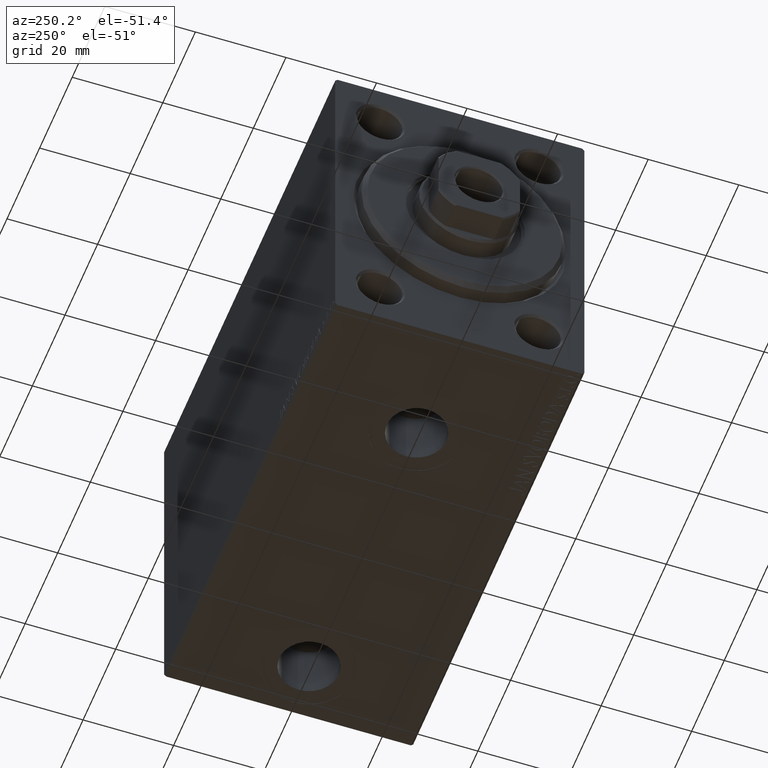
[diagram: clean part render]
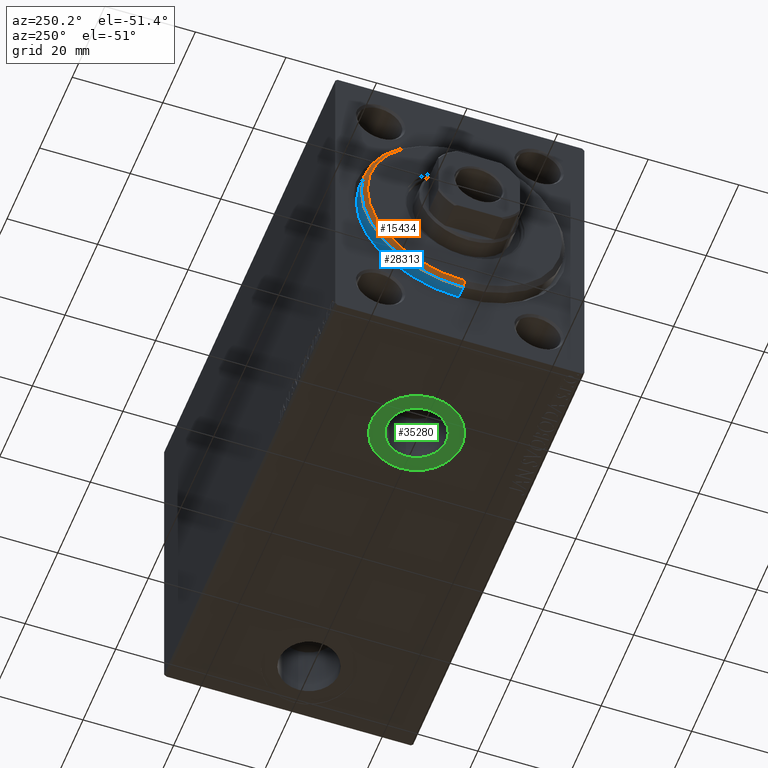
[diagram: same view with three faces highlighted in distinct colors, each labeled with its STEP entity id]
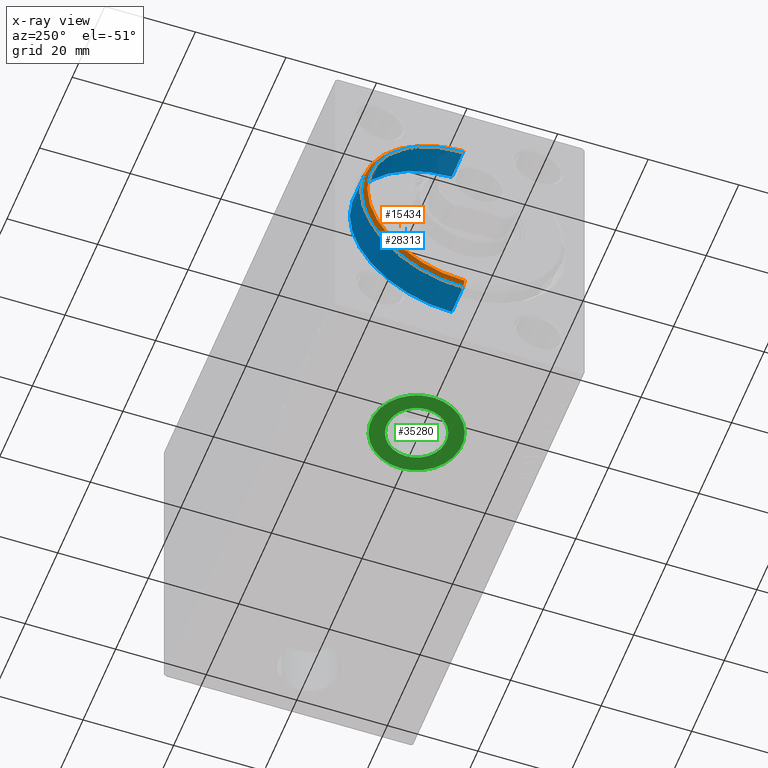
[diagram: x-ray of the same camera — body ghosted, the three highlighted faces saturated]
A machine part, auxiliary view with three faces highlighted in distinct colors.
The next image is the same camera in x-ray (body ghosted, the three faces saturated) — at least one of them is partly hidden behind the body in this view.
Their STEP definitions:

[orange] entity #15434 — the highlighted conical surface has half-angle 45 deg.
#1538 = DIRECTION ( 'NONE',  ( 0.000000000000000000, 0.000000000000000000, 1.000000000000000000 ) ) ;
#2540 = LINE ( 'NONE', #45402, #23604 ) ;
#3064 = ORIENTED_EDGE ( 'NONE', *, *, #23239, .T. ) ;
#3641 = ORIENTED_EDGE ( 'NONE', *, *, #9432, .F. ) ;
#7993 = DIRECTION ( 'NONE',  ( -1.000000000000000000, 0.000000000000000000, 0.000000000000000000 ) ) ;
#8361 = VERTEX_POINT ( 'NONE', #41883 ) ;
#9268 = VECTOR ( 'NONE', #43572, 1000.000000000000000 ) ;
#9432 = EDGE_CURVE ( 'NONE', #8361, #14637, #2540, .T. ) ;
#11248 = CARTESIAN_POINT ( 'NONE',  ( 1.999999999999999112, 0.000000000000000000, 22.50000000000000355 ) ) ;
#11538 = CARTESIAN_POINT ( 'NONE',  ( 3.000000000000000000, 0.000000000000000000, 21.50000000000000355 ) ) ;
#13975 = ORIENTED_EDGE ( 'NONE', *, *, #30765, .F. ) ;
#14024 = VERTEX_POINT ( 'NONE', #31430 ) ;
#14129 = CARTESIAN_POINT ( 'NONE',  ( 1.999999999999999112, 0.000000000000000000, 0.000000000000000000 ) ) ;
#14637 = VERTEX_POINT ( 'NONE', #15121 ) ;
#15121 = CARTESIAN_POINT ( 'NONE',  ( 1.999999999999999112, 2.755455298081545172E-15, -22.50000000000000355 ) ) ;
#15434 = ADVANCED_FACE ( 'NONE', ( #29877 ), #33232, .T. ) ;
#16007 = VERTEX_POINT ( 'NONE', #11248 ) ;
#16636 = CARTESIAN_POINT ( 'NONE',  ( 3.000000000000000000, 0.000000000000000000, 0.000000000000000000 ) ) ;
#19068 = CARTESIAN_POINT ( 'NONE',  ( 3.000000000000000000, 0.000000000000000000, 0.000000000000000000 ) ) ;
#20590 = DIRECTION ( 'NONE',  ( 0.000000000000000000, 0.000000000000000000, -1.000000000000000000 ) ) ;
#23239 = EDGE_CURVE ( 'NONE', #14024, #16007, #43102, .T. ) ;
#23604 = VECTOR ( 'NONE', #30887, 1000.000000000000000 ) ;
#24036 = DIRECTION ( 'NONE',  ( -1.000000000000000000, 0.000000000000000000, 0.000000000000000000 ) ) ;
#25181 = EDGE_CURVE ( 'NONE', #14637, #16007, #26190, .T. ) ;
#26190 = CIRCLE ( 'NONE', #36485, 22.50000000000000355 ) ;
#27075 = AXIS2_PLACEMENT_3D ( 'NONE', #16636, #44979, #38054 ) ;
#28089 = AXIS2_PLACEMENT_3D ( 'NONE', #19068, #7993, #1538 ) ;
#29877 = FACE_OUTER_BOUND ( 'NONE', #34674, .T. ) ;
#30765 = EDGE_CURVE ( 'NONE', #14024, #8361, #44006, .T. ) ;
#30887 = DIRECTION ( 'NONE',  ( -0.7071067811865487940, 8.659560562354919300E-17, -0.7071067811865463515 ) ) ;
#31430 = CARTESIAN_POINT ( 'NONE',  ( 3.000000000000000000, 0.000000000000000000, 21.50000000000000355 ) ) ;
#33232 = CONICAL_SURFACE ( 'NONE', #28089, 21.50000000000000355, 0.7853981633974466137 ) ;
#34674 = EDGE_LOOP ( 'NONE', ( #3641, #13975, #3064, #42459 ) ) ;
#36485 = AXIS2_PLACEMENT_3D ( 'NONE', #14129, #24036, #20590 ) ;
#38054 = DIRECTION ( 'NONE',  ( 0.000000000000000000, 0.000000000000000000, -1.000000000000000000 ) ) ;
#41883 = CARTESIAN_POINT ( 'NONE',  ( 3.000000000000000000, 2.694222958124177598E-15, -21.50000000000000355 ) ) ;
#42459 = ORIENTED_EDGE ( 'NONE', *, *, #25181, .F. ) ;
#43102 = LINE ( 'NONE', #11538, #9268 ) ;
#43572 = DIRECTION ( 'NONE',  ( -0.7071067811865487940, 0.000000000000000000, 0.7071067811865463515 ) ) ;
#44006 = CIRCLE ( 'NONE', #27075, 21.50000000000000355 ) ;
#44979 = DIRECTION ( 'NONE',  ( 1.000000000000000000, -0.000000000000000000, 0.000000000000000000 ) ) ;
#45402 = CARTESIAN_POINT ( 'NONE',  ( 3.000000000000000000, 2.632990618166810024E-15, -21.50000000000000355 ) ) ;

[blue] entity #28313 — the highlighted cylindrical surface (partial cylindrical patch) has radius 22.5 mm, axis along (1, -0, -0).
#2956 = CYLINDRICAL_SURFACE ( 'NONE', #6410, 22.50000000000000355 ) ;
#4368 = AXIS2_PLACEMENT_3D ( 'NONE', #10150, #31582, #24217 ) ;
#5830 = VERTEX_POINT ( 'NONE', #11721 ) ;
#6410 = AXIS2_PLACEMENT_3D ( 'NONE', #17033, #41198, #27857 ) ;
#8744 = CARTESIAN_POINT ( 'NONE',  ( 3.000000000000000000, 2.755455298081545172E-15, -22.50000000000000355 ) ) ;
#9329 = VECTOR ( 'NONE', #39006, 1000.000000000000000 ) ;
#10150 = CARTESIAN_POINT ( 'NONE',  ( -5.000000000000000000, 0.000000000000000000, 0.000000000000000000 ) ) ;
#11248 = CARTESIAN_POINT ( 'NONE',  ( 1.999999999999999112, 0.000000000000000000, 22.50000000000000355 ) ) ;
#11721 = CARTESIAN_POINT ( 'NONE',  ( -5.000000000000000000, 0.000000000000000000, 22.50000000000000355 ) ) ;
#13191 = CIRCLE ( 'NONE', #4368, 22.50000000000000355 ) ;
#14129 = CARTESIAN_POINT ( 'NONE',  ( 1.999999999999999112, 0.000000000000000000, 0.000000000000000000 ) ) ;
#14274 = ORIENTED_EDGE ( 'NONE', *, *, #25181, .T. ) ;
#14637 = VERTEX_POINT ( 'NONE', #15121 ) ;
#15121 = CARTESIAN_POINT ( 'NONE',  ( 1.999999999999999112, 2.755455298081545172E-15, -22.50000000000000355 ) ) ;
#16007 = VERTEX_POINT ( 'NONE', #11248 ) ;
#17033 = CARTESIAN_POINT ( 'NONE',  ( 3.000000000000000000, 0.000000000000000000, 0.000000000000000000 ) ) ;
#20590 = DIRECTION ( 'NONE',  ( 0.000000000000000000, 0.000000000000000000, -1.000000000000000000 ) ) ;
#21927 = CARTESIAN_POINT ( 'NONE',  ( -5.000000000000000000, 2.755455298081545172E-15, -22.50000000000000355 ) ) ;
#22613 = ORIENTED_EDGE ( 'NONE', *, *, #34647, .F. ) ;
#24036 = DIRECTION ( 'NONE',  ( -1.000000000000000000, 0.000000000000000000, 0.000000000000000000 ) ) ;
#24217 = DIRECTION ( 'NONE',  ( 0.000000000000000000, 0.000000000000000000, 1.000000000000000000 ) ) ;
#24967 = CARTESIAN_POINT ( 'NONE',  ( 3.000000000000000000, 0.000000000000000000, 22.50000000000000355 ) ) ;
#25181 = EDGE_CURVE ( 'NONE', #14637, #16007, #26190, .T. ) ;
#26190 = CIRCLE ( 'NONE', #36485, 22.50000000000000355 ) ;
#27857 = DIRECTION ( 'NONE',  ( 0.000000000000000000, 0.000000000000000000, 1.000000000000000000 ) ) ;
#28313 = ADVANCED_FACE ( 'NONE', ( #31299 ), #2956, .T. ) ;
#28611 = EDGE_CURVE ( 'NONE', #16007, #5830, #42007, .T. ) ;
#31299 = FACE_OUTER_BOUND ( 'NONE', #40149, .T. ) ;
#31582 = DIRECTION ( 'NONE',  ( -1.000000000000000000, 0.000000000000000000, 0.000000000000000000 ) ) ;
#34647 = EDGE_CURVE ( 'NONE', #39737, #5830, #13191, .T. ) ;
#35545 = EDGE_CURVE ( 'NONE', #14637, #39737, #36637, .T. ) ;
#36485 = AXIS2_PLACEMENT_3D ( 'NONE', #14129, #24036, #20590 ) ;
#36637 = LINE ( 'NONE', #8744, #44135 ) ;
#37027 = ORIENTED_EDGE ( 'NONE', *, *, #35545, .F. ) ;
#39006 = DIRECTION ( 'NONE',  ( -1.000000000000000000, -0.000000000000000000, -0.000000000000000000 ) ) ;
#39133 = ORIENTED_EDGE ( 'NONE', *, *, #28611, .T. ) ;
#39403 = DIRECTION ( 'NONE',  ( -1.000000000000000000, -0.000000000000000000, -0.000000000000000000 ) ) ;
#39737 = VERTEX_POINT ( 'NONE', #21927 ) ;
#40149 = EDGE_LOOP ( 'NONE', ( #37027, #14274, #39133, #22613 ) ) ;
#41198 = DIRECTION ( 'NONE',  ( -1.000000000000000000, -0.000000000000000000, -0.000000000000000000 ) ) ;
#42007 = LINE ( 'NONE', #24967, #9329 ) ;
#44135 = VECTOR ( 'NONE', #39403, 1000.000000000000000 ) ;

[green] entity #35280 — the highlighted planar face has unit normal (0, 0, -1).
#368 = ORIENTED_EDGE ( 'NONE', *, *, #44993, .F. ) ;
#1021 = VERTEX_POINT ( 'NONE', #15515 ) ;
#2291 = VERTEX_POINT ( 'NONE', #7835 ) ;
#2393 = CIRCLE ( 'NONE', #24504, 9.999999999999998224 ) ;
#4110 = DIRECTION ( 'NONE',  ( -1.000000000000000000, 0.000000000000000000, 0.000000000000000000 ) ) ;
#6895 = CARTESIAN_POINT ( 'NONE',  ( 26.50000000000000000, -3.461774290897328353E-15, -37.39999999999999858 ) ) ;
#7792 = CIRCLE ( 'NONE', #10768, 9.999999999999998224 ) ;
#7835 = CARTESIAN_POINT ( 'NONE',  ( 33.07999999999999829, -2.655956697058369311E-15, -37.39999999999999858 ) ) ;
#8181 = VERTEX_POINT ( 'NONE', #11503 ) ;
#10100 = ORIENTED_EDGE ( 'NONE', *, *, #19297, .T. ) ;
#10382 = EDGE_CURVE ( 'NONE', #2291, #8181, #37608, .T. ) ;
#10400 = VERTEX_POINT ( 'NONE', #11954 ) ;
#10768 = AXIS2_PLACEMENT_3D ( 'NONE', #32220, #35700, #4110 ) ;
#10997 = AXIS2_PLACEMENT_3D ( 'NONE', #19861, #44047, #23543 ) ;
#11503 = CARTESIAN_POINT ( 'NONE',  ( 19.91999999999999815, -3.461774290897328353E-15, -37.39999999999999858 ) ) ;
#11954 = CARTESIAN_POINT ( 'NONE',  ( 36.50000000000000000, -2.237127491749975294E-15, -37.39999999999999858 ) ) ;
#13401 = FACE_BOUND ( 'NONE', #26265, .T. ) ;
#15515 = CARTESIAN_POINT ( 'NONE',  ( 16.50000000000000000, -3.461774290897328353E-15, -37.39999999999999858 ) ) ;
#19297 = EDGE_CURVE ( 'NONE', #10400, #1021, #2393, .T. ) ;
#19861 = CARTESIAN_POINT ( 'NONE',  ( 0.000000000000000000, 0.000000000000000000, -37.39999999999999858 ) ) ;
#19956 = AXIS2_PLACEMENT_3D ( 'NONE', #32017, #20525, #35262 ) ;
#20525 = DIRECTION ( 'NONE',  ( 0.000000000000000000, 0.000000000000000000, -1.000000000000000000 ) ) ;
#20900 = ORIENTED_EDGE ( 'NONE', *, *, #10382, .F. ) ;
#21961 = CARTESIAN_POINT ( 'NONE',  ( 26.50000000000000000, -3.461774290897328353E-15, -37.39999999999999858 ) ) ;
#23543 = DIRECTION ( 'NONE',  ( -1.000000000000000000, 0.000000000000000000, -0.000000000000000000 ) ) ;
#24504 = AXIS2_PLACEMENT_3D ( 'NONE', #6895, #42371, #24883 ) ;
#24883 = DIRECTION ( 'NONE',  ( -1.000000000000000000, 0.000000000000000000, 0.000000000000000000 ) ) ;
#25802 = EDGE_CURVE ( 'NONE', #1021, #10400, #7792, .T. ) ;
#26265 = EDGE_LOOP ( 'NONE', ( #368, #20900 ) ) ;
#27341 = AXIS2_PLACEMENT_3D ( 'NONE', #21961, #28652, #32548 ) ;
#28652 = DIRECTION ( 'NONE',  ( 0.000000000000000000, 0.000000000000000000, -1.000000000000000000 ) ) ;
#30284 = CIRCLE ( 'NONE', #27341, 6.580000000000002736 ) ;
#30445 = FACE_OUTER_BOUND ( 'NONE', #39632, .T. ) ;
#32017 = CARTESIAN_POINT ( 'NONE',  ( 26.50000000000000000, -3.461774290897328353E-15, -37.39999999999999858 ) ) ;
#32220 = CARTESIAN_POINT ( 'NONE',  ( 26.50000000000000000, -3.461774290897328353E-15, -37.39999999999999858 ) ) ;
#32548 = DIRECTION ( 'NONE',  ( -1.000000000000000000, 0.000000000000000000, 0.000000000000000000 ) ) ;
#34603 = PLANE ( 'NONE',  #10997 ) ;
#35262 = DIRECTION ( 'NONE',  ( -1.000000000000000000, 0.000000000000000000, 0.000000000000000000 ) ) ;
#35280 = ADVANCED_FACE ( 'NONE', ( #13401, #30445 ), #34603, .T. ) ;
#35520 = ORIENTED_EDGE ( 'NONE', *, *, #25802, .T. ) ;
#35700 = DIRECTION ( 'NONE',  ( 0.000000000000000000, 0.000000000000000000, -1.000000000000000000 ) ) ;
#37608 = CIRCLE ( 'NONE', #19956, 6.580000000000002736 ) ;
#39632 = EDGE_LOOP ( 'NONE', ( #35520, #10100 ) ) ;
#42371 = DIRECTION ( 'NONE',  ( 0.000000000000000000, 0.000000000000000000, -1.000000000000000000 ) ) ;
#44047 = DIRECTION ( 'NONE',  ( 0.000000000000000000, 0.000000000000000000, -1.000000000000000000 ) ) ;
#44993 = EDGE_CURVE ( 'NONE', #8181, #2291, #30284, .T. ) ;